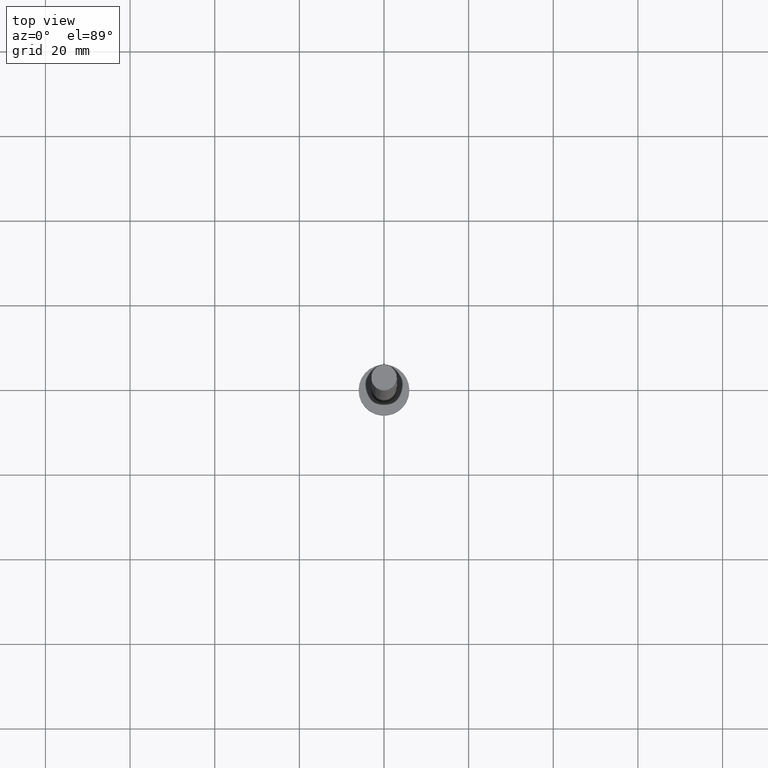
[diagram: clean part render]
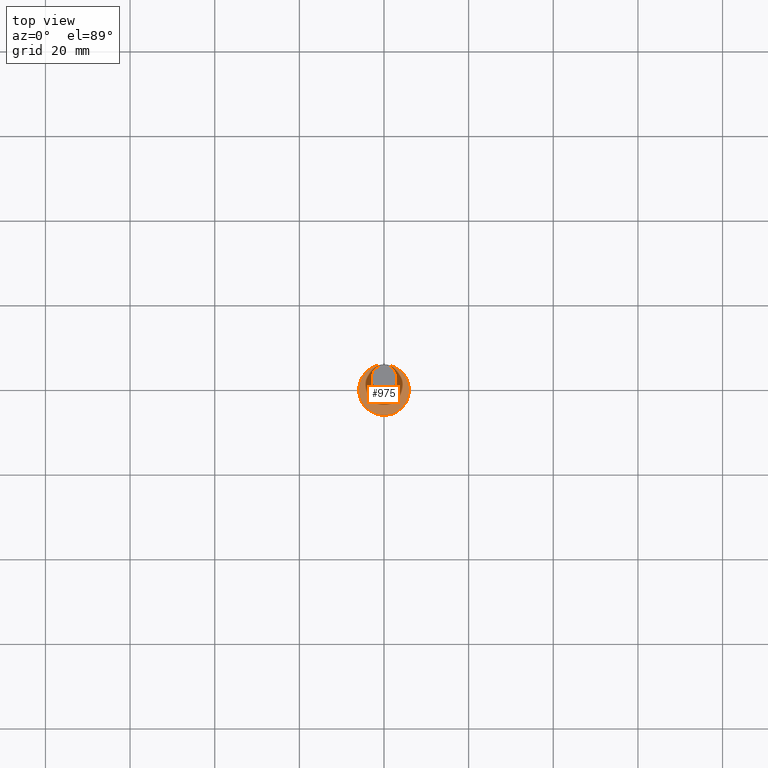
[diagram: same view with one face highlighted and labeled with its STEP entity id]
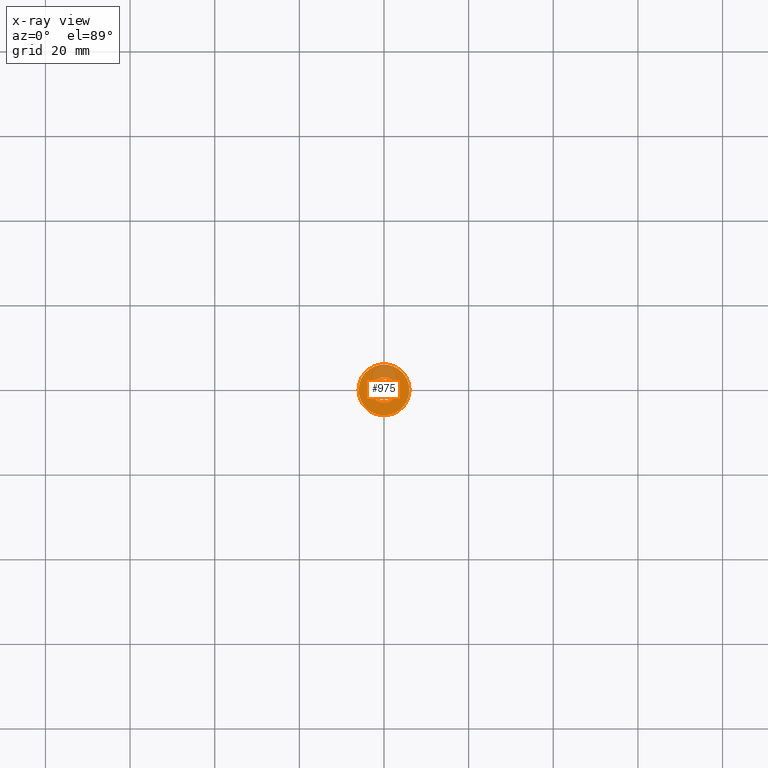
[diagram: x-ray of the same camera — body ghosted, the highlighted face saturated]
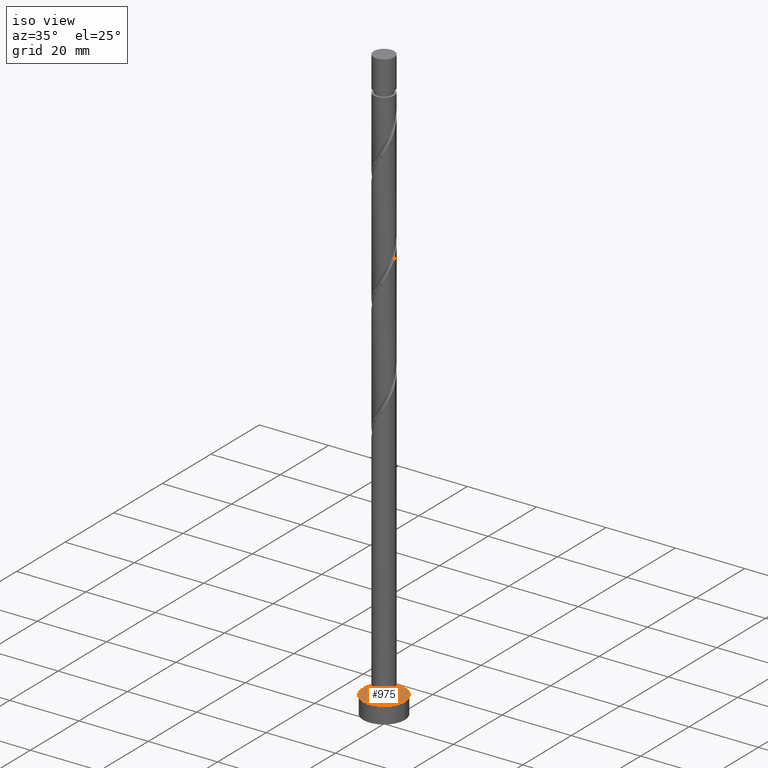
[diagram: same view with one face highlighted and labeled with its STEP entity id]
A machine part, top view. The second image highlights one B-rep face of the part: STEP entity #975.
The next image is the same camera in x-ray: the body ghosted, the highlighted face saturated — about 21% of this face is hidden behind the body in this view.
A second angle (iso view) of the same face is appended — the face is thin or edge-on in the first view.
In plain terms, the highlighted planar face has unit normal (0, 0, 1).
Its self-contained STEP definition (entity closure, byte-faithful):
#48 = DIRECTION ( 'NONE',  ( 1.000000000000000000, 0.000000000000000000, 0.000000000000000000 ) ) ;
#80 = FACE_BOUND ( 'NONE', #187, .T. ) ;
#187 = EDGE_LOOP ( 'NONE', ( #947, #1027 ) ) ;
#231 = VERTEX_POINT ( 'NONE', #714 ) ;
#234 = EDGE_CURVE ( 'NONE', #231, #375, #1264, .T. ) ;
#263 = DIRECTION ( 'NONE',  ( 1.000000000000000000, 0.000000000000000000, 0.000000000000000000 ) ) ;
#269 = CARTESIAN_POINT ( 'NONE',  ( 0.000000000000000000, 0.000000000000000000, 5.000000000000000000 ) ) ;
#323 = CARTESIAN_POINT ( 'NONE',  ( 0.000000000000000000, 0.000000000000000000, 5.000000000000000000 ) ) ;
#328 = DIRECTION ( 'NONE',  ( 0.000000000000000000, 0.000000000000000000, 1.000000000000000000 ) ) ;
#342 = AXIS2_PLACEMENT_3D ( 'NONE', #472, #1395, #581 ) ;
#375 = VERTEX_POINT ( 'NONE', #666 ) ;
#430 = DIRECTION ( 'NONE',  ( 1.000000000000000000, 0.000000000000000000, 0.000000000000000000 ) ) ;
#472 = CARTESIAN_POINT ( 'NONE',  ( 0.000000000000000000, 0.000000000000000000, 5.000000000000000000 ) ) ;
#488 = AXIS2_PLACEMENT_3D ( 'NONE', #269, #944, #263 ) ;
#581 = DIRECTION ( 'NONE',  ( 1.000000000000000000, 0.000000000000000000, 0.000000000000000000 ) ) ;
#666 = CARTESIAN_POINT ( 'NONE',  ( -6.000000000000000888, 0.000000000000000000, 5.000000000000000000 ) ) ;
#709 = CIRCLE ( 'NONE', #342, 3.000000000000000444 ) ;
#714 = CARTESIAN_POINT ( 'NONE',  ( 6.000000000000000888, 7.347880794884120722E-16, 5.000000000000000000 ) ) ;
#732 = DIRECTION ( 'NONE',  ( 0.000000000000000000, 0.000000000000000000, 1.000000000000000000 ) ) ;
#737 = CIRCLE ( 'NONE', #1054, 3.000000000000000444 ) ;
#744 = CARTESIAN_POINT ( 'NONE',  ( 0.000000000000000000, 0.000000000000000000, 5.000000000000000000 ) ) ;
#768 = VERTEX_POINT ( 'NONE', #1414 ) ;
#786 = ORIENTED_EDGE ( 'NONE', *, *, #1037, .T. ) ;
#817 = ORIENTED_EDGE ( 'NONE', *, *, #234, .T. ) ;
#847 = EDGE_CURVE ( 'NONE', #1021, #768, #737, .T. ) ;
#882 = EDGE_CURVE ( 'NONE', #768, #1021, #709, .T. ) ;
#944 = DIRECTION ( 'NONE',  ( 0.000000000000000000, 0.000000000000000000, 1.000000000000000000 ) ) ;
#947 = ORIENTED_EDGE ( 'NONE', *, *, #882, .F. ) ;
#975 = ADVANCED_FACE ( 'NONE', ( #80, #1131 ), #1018, .T. ) ;
#1018 = PLANE ( 'NONE',  #1453 ) ;
#1020 = CARTESIAN_POINT ( 'NONE',  ( 0.000000000000000000, 0.000000000000000000, 5.000000000000000000 ) ) ;
#1021 = VERTEX_POINT ( 'NONE', #1207 ) ;
#1027 = ORIENTED_EDGE ( 'NONE', *, *, #847, .F. ) ;
#1037 = EDGE_CURVE ( 'NONE', #375, #231, #1477, .T. ) ;
#1054 = AXIS2_PLACEMENT_3D ( 'NONE', #1020, #328, #48 ) ;
#1124 = AXIS2_PLACEMENT_3D ( 'NONE', #323, #732, #430 ) ;
#1131 = FACE_OUTER_BOUND ( 'NONE', #1484, .T. ) ;
#1207 = CARTESIAN_POINT ( 'NONE',  ( 3.000000000000000444, 3.673940397442059868E-16, 5.000000000000000000 ) ) ;
#1264 = CIRCLE ( 'NONE', #1124, 6.000000000000000888 ) ;
#1395 = DIRECTION ( 'NONE',  ( 0.000000000000000000, 0.000000000000000000, 1.000000000000000000 ) ) ;
#1414 = CARTESIAN_POINT ( 'NONE',  ( -3.000000000000000444, 0.000000000000000000, 5.000000000000000000 ) ) ;
#1453 = AXIS2_PLACEMENT_3D ( 'NONE', #744, #1540, #1691 ) ;
#1477 = CIRCLE ( 'NONE', #488, 6.000000000000000888 ) ;
#1484 = EDGE_LOOP ( 'NONE', ( #786, #817 ) ) ;
#1540 = DIRECTION ( 'NONE',  ( 0.000000000000000000, 0.000000000000000000, 1.000000000000000000 ) ) ;
#1691 = DIRECTION ( 'NONE',  ( 1.000000000000000000, 0.000000000000000000, -0.000000000000000000 ) ) ;